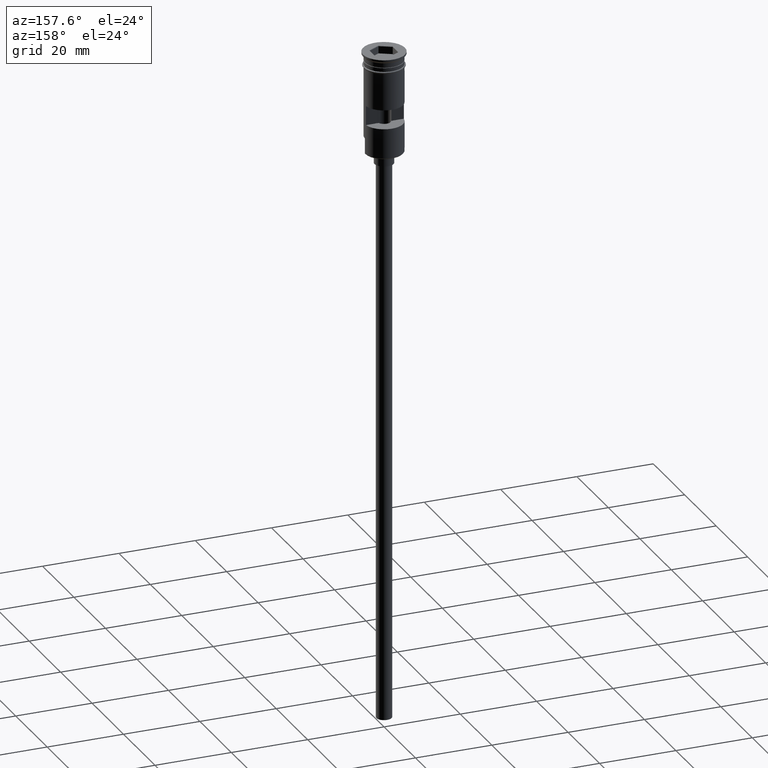
[diagram: clean part render]
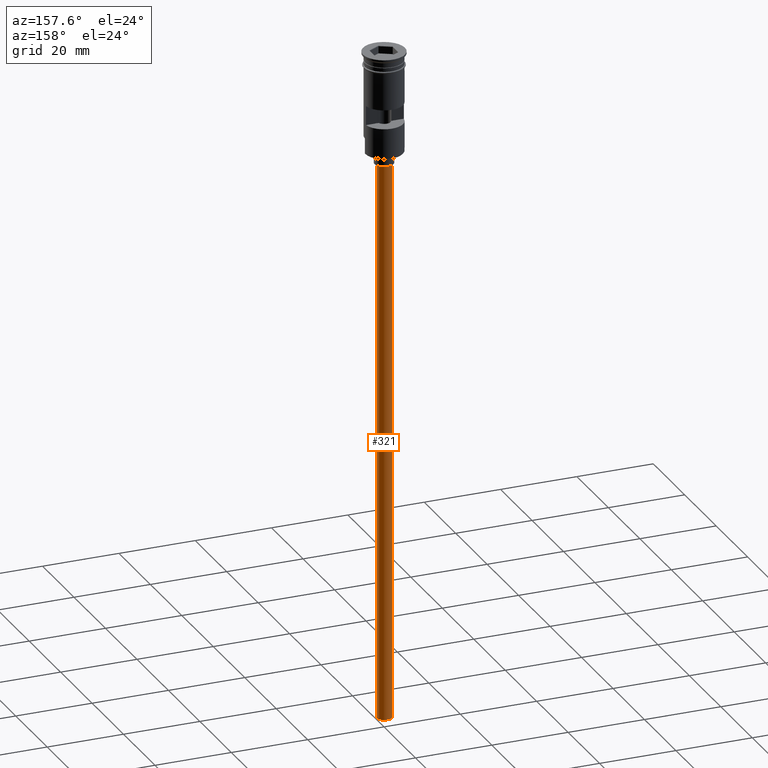
[diagram: same view with one face highlighted and labeled with its STEP entity id]
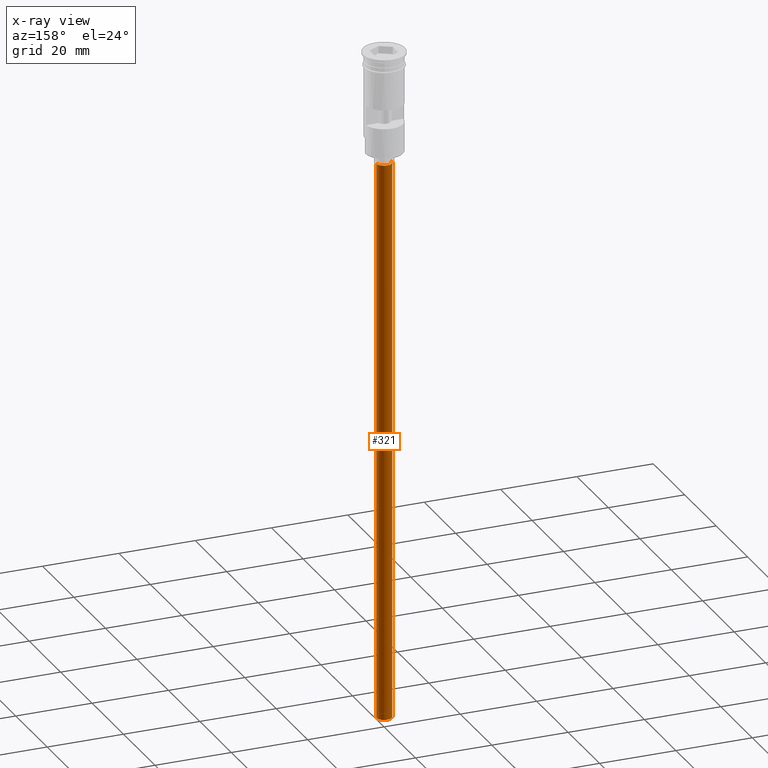
[diagram: x-ray of the same camera — body ghosted, the highlighted face saturated]
A machine part, auxiliary view. The second image highlights one B-rep face of the part: STEP entity #321.
The next image is the same camera in x-ray: the body ghosted, the highlighted face saturated — about 0% of this face is hidden behind the body in this view.
In plain terms, the highlighted cylindrical surface (edge-blend (fillet) strip) has radius 2 mm, axis along (-0, -0, 1).
Its self-contained STEP definition (entity closure, byte-faithful):
#24 = CARTESIAN_POINT ( 'NONE',  ( 2.000000000000000000, 0.000000000000000000, -176.5000000000000000 ) ) ;
#39 = EDGE_CURVE ( 'NONE', #389, #1602, #178, .T. ) ;
#40 = CARTESIAN_POINT ( 'NONE',  ( -2.000000000000000000, 2.449293598294706414E-16, -176.5000000000000000 ) ) ;
#49 = CYLINDRICAL_SURFACE ( 'NONE', #1059, 2.000000000000000000 ) ;
#168 = LINE ( 'NONE', #24, #897 ) ;
#176 = ORIENTED_EDGE ( 'NONE', *, *, #1578, .F. ) ;
#178 = CIRCLE ( 'NONE', #1058, 2.000000000000000000 ) ;
#242 = EDGE_LOOP ( 'NONE', ( #1114, #1529, #864, #176 ) ) ;
#321 = ADVANCED_FACE ( 'NONE', ( #325 ), #49, .T. ) ;
#325 = FACE_OUTER_BOUND ( 'NONE', #242, .T. ) ;
#382 = CARTESIAN_POINT ( 'NONE',  ( 0.000000000000000000, 0.000000000000000000, -29.50000000000000000 ) ) ;
#389 = VERTEX_POINT ( 'NONE', #1163 ) ;
#550 = DIRECTION ( 'NONE',  ( -0.000000000000000000, -0.000000000000000000, 1.000000000000000000 ) ) ;
#565 = DIRECTION ( 'NONE',  ( 1.000000000000000000, 0.000000000000000000, 0.000000000000000000 ) ) ;
#611 = DIRECTION ( 'NONE',  ( -1.000000000000000000, 0.000000000000000000, 0.000000000000000000 ) ) ;
#665 = CARTESIAN_POINT ( 'NONE',  ( 2.000000000000000000, 0.000000000000000000, -176.5000000000000000 ) ) ;
#784 = VERTEX_POINT ( 'NONE', #1175 ) ;
#817 = CARTESIAN_POINT ( 'NONE',  ( 0.000000000000000000, 0.000000000000000000, -176.5000000000000000 ) ) ;
#837 = DIRECTION ( 'NONE',  ( 0.000000000000000000, 0.000000000000000000, -1.000000000000000000 ) ) ;
#852 = VECTOR ( 'NONE', #1260, 1000.000000000000000 ) ;
#864 = ORIENTED_EDGE ( 'NONE', *, *, #1076, .T. ) ;
#897 = VECTOR ( 'NONE', #1377, 1000.000000000000000 ) ;
#1058 = AXIS2_PLACEMENT_3D ( 'NONE', #817, #837, #1060 ) ;
#1059 = AXIS2_PLACEMENT_3D ( 'NONE', #1401, #550, #565 ) ;
#1060 = DIRECTION ( 'NONE',  ( -1.000000000000000000, 0.000000000000000000, 0.000000000000000000 ) ) ;
#1076 = EDGE_CURVE ( 'NONE', #1530, #784, #1185, .T. ) ;
#1114 = ORIENTED_EDGE ( 'NONE', *, *, #39, .F. ) ;
#1163 = CARTESIAN_POINT ( 'NONE',  ( -2.000000000000000000, 2.449293598294706414E-16, -176.5000000000000000 ) ) ;
#1175 = CARTESIAN_POINT ( 'NONE',  ( 2.000000000000000000, 0.000000000000000000, -29.50000000000000000 ) ) ;
#1185 = CIRCLE ( 'NONE', #1472, 2.000000000000000000 ) ;
#1260 = DIRECTION ( 'NONE',  ( -0.000000000000000000, -0.000000000000000000, 1.000000000000000000 ) ) ;
#1275 = LINE ( 'NONE', #40, #852 ) ;
#1377 = DIRECTION ( 'NONE',  ( -0.000000000000000000, -0.000000000000000000, 1.000000000000000000 ) ) ;
#1401 = CARTESIAN_POINT ( 'NONE',  ( 0.000000000000000000, 0.000000000000000000, -176.5000000000000000 ) ) ;
#1469 = DIRECTION ( 'NONE',  ( 0.000000000000000000, 0.000000000000000000, -1.000000000000000000 ) ) ;
#1472 = AXIS2_PLACEMENT_3D ( 'NONE', #382, #1469, #611 ) ;
#1508 = CARTESIAN_POINT ( 'NONE',  ( -2.000000000000000000, 2.449293598294706414E-16, -29.50000000000000000 ) ) ;
#1529 = ORIENTED_EDGE ( 'NONE', *, *, #1542, .T. ) ;
#1530 = VERTEX_POINT ( 'NONE', #1508 ) ;
#1542 = EDGE_CURVE ( 'NONE', #389, #1530, #1275, .T. ) ;
#1578 = EDGE_CURVE ( 'NONE', #1602, #784, #168, .T. ) ;
#1602 = VERTEX_POINT ( 'NONE', #665 ) ;